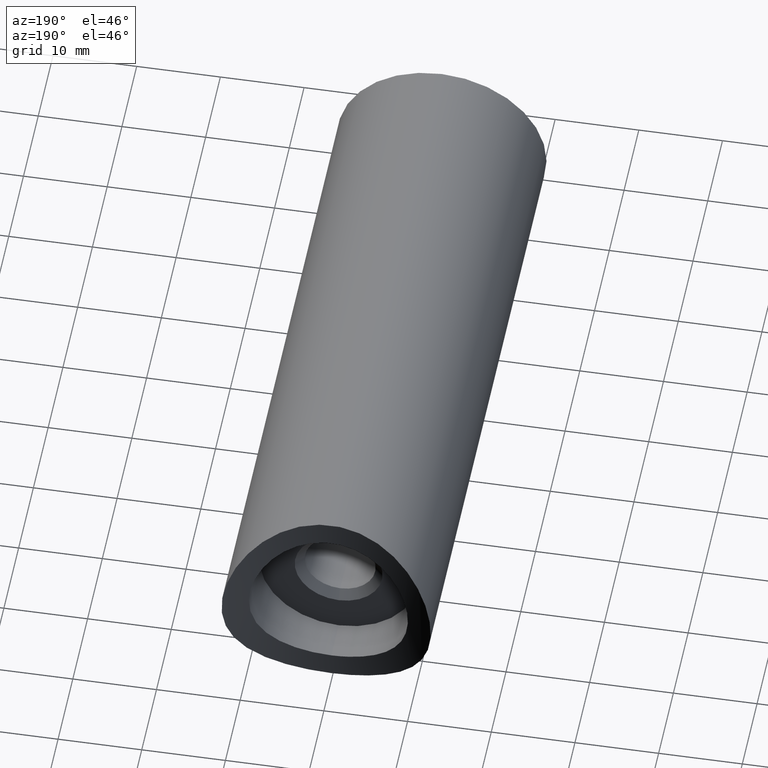
[diagram: clean part render]
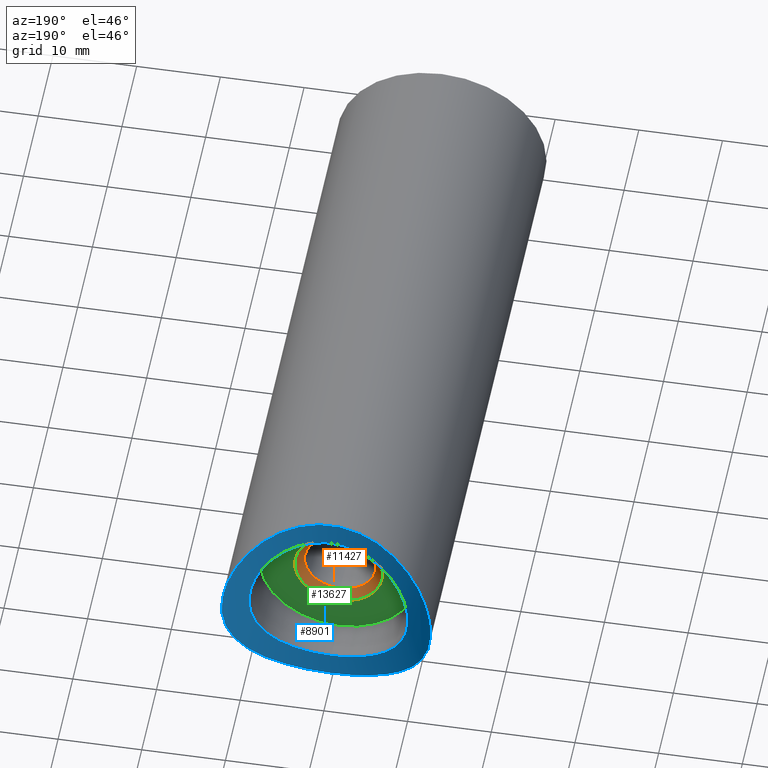
[diagram: same view with three faces highlighted in distinct colors, each labeled with its STEP entity id]
A machine part, auxiliary view with three faces highlighted in distinct colors.
Their STEP definitions:

[orange] entity #11427 — the highlighted conical surface has half-angle 45 deg.
#717 = DIRECTION ( 'NONE',  ( 0.000000000000000000, 0.000000000000000000, -1.000000000000000000 ) ) ;
#1230 = DIRECTION ( 'NONE',  ( 0.000000000000000000, 1.000000000000000000, 0.000000000000000000 ) ) ;
#2233 = AXIS2_PLACEMENT_3D ( 'NONE', #7409, #4196, #717 ) ;
#2691 = FACE_BOUND ( 'NONE', #4431, .T. ) ;
#2869 = CARTESIAN_POINT ( 'NONE',  ( 0.000000000000000000, 70.00000000000000000, 0.000000000000000000 ) ) ;
#2877 = ORIENTED_EDGE ( 'NONE', *, *, #13805, .F. ) ;
#3480 = CARTESIAN_POINT ( 'NONE',  ( 0.000000000000000000, 69.00000000000000000, 0.000000000000000000 ) ) ;
#4196 = DIRECTION ( 'NONE',  ( 0.000000000000000000, 1.000000000000000000, 0.000000000000000000 ) ) ;
#4431 = EDGE_LOOP ( 'NONE', ( #8418 ) ) ;
#4937 = VERTEX_POINT ( 'NONE', #10315 ) ;
#6818 = CARTESIAN_POINT ( 'NONE',  ( 0.000000000000000000, 69.00000000000000000, -4.249999999999988454 ) ) ;
#6826 = VERTEX_POINT ( 'NONE', #6818 ) ;
#7319 = AXIS2_PLACEMENT_3D ( 'NONE', #2869, #7341, #10904 ) ;
#7341 = DIRECTION ( 'NONE',  ( 0.000000000000000000, -1.000000000000000000, 0.000000000000000000 ) ) ;
#7409 = CARTESIAN_POINT ( 'NONE',  ( 0.000000000000000000, 69.00000000000000000, 0.000000000000000000 ) ) ;
#8392 = CONICAL_SURFACE ( 'NONE', #12679, 4.249999999999988454, 0.7853981633974457255 ) ;
#8418 = ORIENTED_EDGE ( 'NONE', *, *, #9882, .F. ) ;
#8756 = FACE_OUTER_BOUND ( 'NONE', #14425, .T. ) ;
#9515 = CIRCLE ( 'NONE', #2233, 4.249999999999988454 ) ;
#9882 = EDGE_CURVE ( 'NONE', #6826, #6826, #9515, .T. ) ;
#10315 = CARTESIAN_POINT ( 'NONE',  ( 0.000000000000000000, 70.00000000000000000, -5.249999999999984013 ) ) ;
#10904 = DIRECTION ( 'NONE',  ( 0.000000000000000000, 0.000000000000000000, -1.000000000000000000 ) ) ;
#11427 = ADVANCED_FACE ( 'NONE', ( #8756, #2691 ), #8392, .F. ) ;
#12637 = DIRECTION ( 'NONE',  ( 0.000000000000000000, 0.000000000000000000, 1.000000000000000000 ) ) ;
#12679 = AXIS2_PLACEMENT_3D ( 'NONE', #3480, #1230, #12637 ) ;
#13237 = CIRCLE ( 'NONE', #7319, 5.249999999999984013 ) ;
#13805 = EDGE_CURVE ( 'NONE', #4937, #4937, #13237, .T. ) ;
#14425 = EDGE_LOOP ( 'NONE', ( #2877 ) ) ;

[blue] entity #8901 — the highlighted cylindrical surface (partial cylindrical patch) has radius 24.15 mm, axis along (-0, -0, 1).
#36 = CARTESIAN_POINT ( 'NONE',  ( 9.193056664637765607, 76.81778522380197671, 2.475342058951142121 ) ) ;
#37 = CARTESIAN_POINT ( 'NONE',  ( -11.18556598586051010, 77.74549956250866956, 5.594425883101207475 ) ) ;
#81 = CARTESIAN_POINT ( 'NONE',  ( -8.510542519066493838, 76.54872143713436117, 4.232847530208183606 ) ) ;
#82 = CARTESIAN_POINT ( 'NONE',  ( 5.616393516081356729, 75.64972558784738510, 11.19673421751230258 ) ) ;
#130 = CARTESIAN_POINT ( 'NONE',  ( 9.499214769619728216, 76.94667998977251955, -0.6384542957926189199 ) ) ;
#131 = CARTESIAN_POINT ( 'NONE',  ( -10.61159664689884252, 77.45488404047154063, -6.618618285412095403 ) ) ;
#189 = CARTESIAN_POINT ( 'NONE',  ( -4.218238365120572375, 75.36961082937598633, 8.517827586905390547 ) ) ;
#190 = CARTESIAN_POINT ( 'NONE',  ( -6.316747293375139627, 75.83777653740196456, -10.79430669075418692 ) ) ;
#292 = CARTESIAN_POINT ( 'NONE',  ( -1.572090179147043632, 75.04927085023612676, -9.374213592972790110 ) ) ;
#950 = CARTESIAN_POINT ( 'NONE',  ( 12.06284593198464172, 78.22800179751477856, -3.302785208884871260 ) ) ;
#1045 = CARTESIAN_POINT ( 'NONE',  ( 1.666427008392844522, 75.04383638825332525, -12.41589289394555884 ) ) ;
#1093 = CARTESIAN_POINT ( 'NONE',  ( 9.125846458580165077, 76.78856738321623254, -8.551539796307121577 ) ) ;
#1136 = CARTESIAN_POINT ( 'NONE',  ( 9.437043816654821171, 76.91978093354752843, -1.258921852254846430 ) ) ;
#1137 = CARTESIAN_POINT ( 'NONE',  ( -3.316877259944496004, 75.21483071661621977, -12.08057711187188410 ) ) ;
#1182 = CARTESIAN_POINT ( 'NONE',  ( -8.216106106290522959, 76.44003022689670956, 4.779323449297377735 ) ) ;
#1183 = CARTESIAN_POINT ( 'NONE',  ( 9.412192866964703697, 76.90790369320748709, 8.235475087461979982 ) ) ;
#1237 = CARTESIAN_POINT ( 'NONE',  ( 3.077021658739412580, 75.19492368750546518, -8.993352366064405246 ) ) ;
#1238 = CARTESIAN_POINT ( 'NONE',  ( -12.47702995727797415, 78.47275003880018573, 0.8636410543319847921 ) ) ;
#1290 = CARTESIAN_POINT ( 'NONE',  ( 9.376693620057871215, 76.89456204277402662, 1.557247264431473432 ) ) ;
#1291 = CARTESIAN_POINT ( 'NONE',  ( 4.493358900822063795, 75.41862216006218489, 11.67154270457320919 ) ) ;
#1339 = CARTESIAN_POINT ( 'NONE',  ( 3.093813615829786645, 75.19203433111398738, 9.003380680992760787 ) ) ;
#1340 = CARTESIAN_POINT ( 'NONE',  ( -12.09488317661415913, 78.24612544468091357, -3.263940484297841227 ) ) ;
#1386 = CARTESIAN_POINT ( 'NONE',  ( -9.500662680517631742, 76.94729950751319336, -0.6160530832159377690 ) ) ;
#1495 = CARTESIAN_POINT ( 'NONE',  ( -0.6353278872126894017, 75.00631901483400554, -9.483969120928300356 ) ) ;
#2044 = CARTESIAN_POINT ( 'NONE',  ( 2.174000736269224632, 75.09609725218493281, -9.253158087516537122 ) ) ;
#2045 = CARTESIAN_POINT ( 'NONE',  ( 4.073928212782695901, 75.34271850014701499, -11.82477579534296197 ) ) ;
#2096 = CARTESIAN_POINT ( 'NONE',  ( 12.17629244726874482, 78.29408420261459867, 2.856247619983864894 ) ) ;
#2222 = CARTESIAN_POINT ( 'NONE',  ( 0.000000000000000000, 99.15000000000000568, -12.50000000000000000 ) ) ;
#2247 = CARTESIAN_POINT ( 'NONE',  ( 11.67831068887509716, 78.01066302200520397, -4.475638660923367596 ) ) ;
#2297 = CARTESIAN_POINT ( 'NONE',  ( 8.884871832431230132, 76.69342269747139085, -3.377035680665607220 ) ) ;
#2298 = CARTESIAN_POINT ( 'NONE',  ( -10.58722758480828574, 77.44295697200134043, 6.657615752389719255 ) ) ;
#2343 = CARTESIAN_POINT ( 'NONE',  ( 6.502903001252344772, 75.89090259929585613, -6.932254495519477366 ) ) ;
#2344 = CARTESIAN_POINT ( 'NONE',  ( -6.665751520387539486, 75.93550895653356747, -10.58210857748916567 ) ) ;
#2395 = CARTESIAN_POINT ( 'NONE',  ( 8.527852376057261097, 76.55434819827355852, -4.231666778120470873 ) ) ;
#2396 = CARTESIAN_POINT ( 'NONE',  ( -11.36069409278679920, 77.83828525848096547, 5.229597903835157879 ) ) ;
#2442 = CARTESIAN_POINT ( 'NONE',  ( -3.934444486296392540, 75.32087562434655581, 8.652572895259925900 ) ) ;
#2443 = CARTESIAN_POINT ( 'NONE',  ( -8.264077568507039118, 76.44978608018516297, 9.412695405477595756 ) ) ;
#2502 = CARTESIAN_POINT ( 'NONE',  ( 9.251696904950398093, 76.84230876325581505, -2.180429874088628761 ) ) ;
#2504 = CARTESIAN_POINT ( 'NONE',  ( -10.81973109692051693, 77.55827660612015961, -6.272818569617441220 ) ) ;
#2552 = CARTESIAN_POINT ( 'NONE',  ( -7.161008188894703252, 76.08167090256068832, -6.272936677098543967 ) ) ;
#2603 = CARTESIAN_POINT ( 'NONE',  ( -9.255283127220218731, 76.84379706405243837, -2.165420669590635061 ) ) ;
#2680 = VERTEX_POINT ( 'NONE', #11494 ) ;
#2795 = B_SPLINE_CURVE_WITH_KNOTS ( 'NONE', 3,
 ( #6741, #6794, #1045, #5550, #4565, #2045, #12455, #12357, #9101, #13565, #13666, #13514, #4521, #1093, #6640, #6691, #5684, #14727, #5637, #2247, #14677, #950, #11290, #3393, #13618, #4473, #7888, #3347, #11333, #2096, #6588, #7739, #10112, #10342, #9193, #7974, #11631, #1183, #12750, #8171, #9238, #8069, #82, #1291, #10491, #3485, #12645, #6933, #4801, #9293, #7031, #11472, #5823, #13853, #3541, #12798, #11579, #6982, #2443, #5774, #5731, #2298, #3597, #37, #2396, #13705, #4656, #10445, #13801, #1238, #10394, #10298, #6841, #6888, #5881, #1340, #4746, #13902, #14867, #2504, #131, #8023, #11522, #3440, #11425, #12698, #4704, #2344, #190, #3650, #8119, #9337, #1137, #9145, #4605, #12603, #13750, #11835 ),
 .UNSPECIFIED., .T., .F.,
 ( 4, 2, 2, 2, 2, 2, 2, 2, 2, 2, 2, 2, 2, 2, 2, 2, 2, 2, 2, 2, 2, 2, 2, 2, 2, 2, 2, 2, 2, 2, 2, 2, 2, 2, 2, 2, 2, 2, 2, 2, 2, 2, 2, 2, 2, 2, 2, 2, 4 ),
 ( 0.000000000000000000, 0.002486133216992819726, 0.003729199825489227637, 0.004972266433985636849, 0.007458399650978455274, 0.008701466259474866655, 0.009944532867971275433, 0.01118759947646768595, 0.01243066608496409819, 0.01491679930195691922, 0.01615986591045333320, 0.01740293251894974372, 0.01988906573594257168, 0.02113213234443898914, 0.02237519895293540312, 0.02361826556143181710, 0.02486133216992823108, 0.02734746538692106252, 0.02859053199541747650, 0.02983359860391389742, 0.03231973182090672192, 0.03480586503789954295, 0.03604893164639594999, 0.03729199825489235703, 0.03977813147188517112, 0.04102119808038158510, 0.04226426468887799215, 0.04475039790587081318, 0.04723653112286363420, 0.04972266433985644829, 0.05220879755684926932, 0.05345186416534567636, 0.05469493077384209034, 0.05718106399083490443, 0.05842413059933131148, 0.05966719720782772546, 0.06091026381632413250, 0.06215333042482054648, 0.06463946364181336057, 0.06588253025030976762, 0.06712559685880617466, 0.06836866346730258170, 0.06961173007579898875, 0.07209786329279180284, 0.07334092990128820988, 0.07458399650978461692, 0.07707012972677744489, 0.07831319633527385193, 0.07955626294377027286 ),
 .UNSPECIFIED. ) ;
#3347 = CARTESIAN_POINT ( 'NONE',  ( 12.39939560149940156, 78.42610661434582653, 1.636956017459156199 ) ) ;
#3393 = CARTESIAN_POINT ( 'NONE',  ( 12.41328738822395650, 78.43359788489519246, -1.685670540479240254 ) ) ;
#3439 = CARTESIAN_POINT ( 'NONE',  ( 5.044969069780093740, 75.53136713757005793, 8.055662908764864127 ) ) ;
#3440 = CARTESIAN_POINT ( 'NONE',  ( -9.411987761562489396, 76.90781012069029998, -8.235748521031609926 ) ) ;
#3484 = CARTESIAN_POINT ( 'NONE',  ( 8.236572966326859202, 76.44503504265567528, -4.774411568650105409 ) ) ;
#3485 = CARTESIAN_POINT ( 'NONE',  ( 3.322960808794975573, 75.22639354888728747, 12.05726743121238265 ) ) ;
#3540 = CARTESIAN_POINT ( 'NONE',  ( -9.005327352623405446, 76.74034258593999880, 3.088788311459570668 ) ) ;
#3541 = CARTESIAN_POINT ( 'NONE',  ( -4.048937038016216405, 75.32909628045071315, 11.85496764630668842 ) ) ;
#3596 = CARTESIAN_POINT ( 'NONE',  ( 1.260343601547155412, 75.03089121637468395, 9.421238629142054677 ) ) ;
#3597 = CARTESIAN_POINT ( 'NONE',  ( -10.79939258952037839, 77.54808700369301278, 6.307741837057436740 ) ) ;
#3649 = CARTESIAN_POINT ( 'NONE',  ( 6.938676291945663266, 76.01715648012773840, 6.496099429218702426 ) ) ;
#3650 = CARTESIAN_POINT ( 'NONE',  ( -5.595272729540679890, 75.65417096119982432, -11.18531521167289711 ) ) ;
#3759 = CARTESIAN_POINT ( 'NONE',  ( -6.508174638112111055, 75.89236685973550323, -6.927380896768315921 ) ) ;
#3908 = CARTESIAN_POINT ( 'NONE',  ( -5.800068759184891398, 75.70554385703265154, -7.530264462451012442 ) ) ;
#4473 = CARTESIAN_POINT ( 'NONE',  ( 12.50105946675680713, 78.48732800745126781, 0.3829992845280569269 ) ) ;
#4493 = CARTESIAN_POINT ( 'NONE',  ( 0.000000000000000000, 75.00000000000000000, -9.500000000000000000 ) ) ;
#4521 = CARTESIAN_POINT ( 'NONE',  ( 8.560607551957428285, 76.56613982061726631, -9.117340885081242519 ) ) ;
#4565 = CARTESIAN_POINT ( 'NONE',  ( 3.280682860040504689, 75.22050641012256733, -12.06894086756879325 ) ) ;
#4604 = CARTESIAN_POINT ( 'NONE',  ( -2.477368257026574927, 75.11946122093324618, 9.192778334958587649 ) ) ;
#4605 = CARTESIAN_POINT ( 'NONE',  ( -1.676951933329619893, 75.05466276626709998, -12.39411511674445698 ) ) ;
#4655 = CARTESIAN_POINT ( 'NONE',  ( -5.799092914521390085, 75.70073719207624663, 7.549815552955290165 ) ) ;
#4656 = CARTESIAN_POINT ( 'NONE',  ( -12.07716066025249901, 78.23582747360669032, 3.330140473100294596 ) ) ;
#4703 = CARTESIAN_POINT ( 'NONE',  ( 9.485152732290417887, 76.94064353638327702, 0.6178967879999681667 ) ) ;
#4704 = CARTESIAN_POINT ( 'NONE',  ( -7.670003217709709276, 76.23967696440641362, -9.903237437807746346 ) ) ;
#4745 = CARTESIAN_POINT ( 'NONE',  ( 2.500404097984892271, 75.12179392227974972, 9.186700151532587455 ) ) ;
#4746 = CARTESIAN_POINT ( 'NONE',  ( -11.85457163419845195, 78.10669073264533324, -4.048891219634837668 ) ) ;
#4800 = CARTESIAN_POINT ( 'NONE',  ( -0.3171744019907673517, 75.00000000000004263, -9.500000000000001776 ) ) ;
#4801 = CARTESIAN_POINT ( 'NONE',  ( 0.8701867918572706584, 75.00139095811007905, 12.49731265922302015 ) ) ;
#4861 = CARTESIAN_POINT ( 'NONE',  ( -8.996200247582851972, 76.73793805095576204, -3.068502061978064521 ) ) ;
#4910 = CARTESIAN_POINT ( 'NONE',  ( -5.553079317562379380, 75.64565565303477968, -7.714129740837600835 ) ) ;
#4954 = CARTESIAN_POINT ( 'NONE',  ( -1.262451520650291092, 75.03097868495191847, -9.421015230271068575 ) ) ;
#5446 = CARTESIAN_POINT ( 'NONE',  ( 1.256893714816299523, 75.02493451614628839, -9.437111494792404187 ) ) ;
#5550 = CARTESIAN_POINT ( 'NONE',  ( 2.880084786186518198, 75.16890301952329878, -12.17068015586779772 ) ) ;
#5637 = CARTESIAN_POINT ( 'NONE',  ( 11.20659804588976804, 77.75461045228877310, -5.596363829670499612 ) ) ;
#5658 = DIRECTION ( 'NONE',  ( 1.000000000000000000, 0.000000000000000000, 0.000000000000000000 ) ) ;
#5683 = CARTESIAN_POINT ( 'NONE',  ( 4.776994683298587674, 75.47553062007276026, 8.217483131435335153 ) ) ;
#5684 = CARTESIAN_POINT ( 'NONE',  ( 10.14872829841706015, 77.23452566915328532, -7.308644647692623231 ) ) ;
#5730 = CARTESIAN_POINT ( 'NONE',  ( 7.540132609630790128, 76.20634207888515732, 5.787255511451562029 ) ) ;
#5731 = CARTESIAN_POINT ( 'NONE',  ( -9.909193422454766420, 77.12091001598065532, 7.662299098335452641 ) ) ;
#5773 = CARTESIAN_POINT ( 'NONE',  ( -8.056722323660352458, 76.38281855678741294, 5.043165203084824633 ) ) ;
#5774 = CARTESIAN_POINT ( 'NONE',  ( -9.399704287991012208, 76.89600599078944754, 8.278850895681339139 ) ) ;
#5822 = CARTESIAN_POINT ( 'NONE',  ( -9.434962940845293744, 76.91889607188139166, 1.273160634128879698 ) ) ;
#5823 = CARTESIAN_POINT ( 'NONE',  ( -2.042669042519714928, 75.08308288046927714, 12.33891662597604011 ) ) ;
#5879 = CARTESIAN_POINT ( 'NONE',  ( 8.237217831319831873, 76.44533245457874671, 4.772522679604951357 ) ) ;
#5881 = CARTESIAN_POINT ( 'NONE',  ( -12.33897836552500316, 78.38991737696545670, -2.042544866178391594 ) ) ;
#5943 = VERTEX_POINT ( 'NONE', #4493 ) ;
#6134 = CARTESIAN_POINT ( 'NONE',  ( -6.776263578034402713E-16, 75.00000000000002842, -9.500000000000001776 ) ) ;
#6588 = CARTESIAN_POINT ( 'NONE',  ( 12.07568711241505000, 78.23542578517957224, 3.255345404598879888 ) ) ;
#6640 = CARTESIAN_POINT ( 'NONE',  ( 9.394847521644635435, 76.90057323516757037, -8.255202184159767143 ) ) ;
#6691 = CARTESIAN_POINT ( 'NONE',  ( 9.905737200678293775, 77.12327709735983206, -7.634650847773375659 ) ) ;
#6741 = CARTESIAN_POINT ( 'NONE',  ( -1.626303258728256651E-16, 75.00000000000001421, -12.50000000000000355 ) ) ;
#6794 = CARTESIAN_POINT ( 'NONE',  ( 0.8416139926660887172, 74.99999999999998579, -12.50000000000000000 ) ) ;
#6840 = CARTESIAN_POINT ( 'NONE',  ( -9.499326505657204933, 76.94672779820564301, 0.6363243742295972005 ) ) ;
#6841 = CARTESIAN_POINT ( 'NONE',  ( -12.48178325670625632, 78.47562429088374358, -0.7935034702485436187 ) ) ;
#6887 = CARTESIAN_POINT ( 'NONE',  ( 6.275586754272982404, 75.82833350539628725, -7.138791081410559514 ) ) ;
#6888 = CARTESIAN_POINT ( 'NONE',  ( -12.40093975770249735, 78.42703164710890462, -1.625193573246784373 ) ) ;
#6932 = CARTESIAN_POINT ( 'NONE',  ( -6.275471604676970294, 75.82512488083456503, 7.159155207153961697 ) ) ;
#6933 = CARTESIAN_POINT ( 'NONE',  ( 1.693364542386435190, 75.04548548441425737, 12.41272702035197639 ) ) ;
#6981 = CARTESIAN_POINT ( 'NONE',  ( 5.798810078399073475, 75.70523685616372234, -7.531210320333029173 ) ) ;
#6982 = CARTESIAN_POINT ( 'NONE',  ( -7.632636067880916642, 76.22716114424368072, 9.932055065716140163 ) ) ;
#7016 = EDGE_LOOP ( 'NONE', ( #7278 ) ) ;
#7030 = CARTESIAN_POINT ( 'NONE',  ( 9.423099453564327987, 76.91424425455466007, 1.247042695232497334 ) ) ;
#7031 = CARTESIAN_POINT ( 'NONE',  ( -0.7937935283653622109, 75.00941349151192128, 12.48185230467801787 ) ) ;
#7079 = CARTESIAN_POINT ( 'NONE',  ( -8.891121034785888000, 76.69589652520495804, -3.360649652997342418 ) ) ;
#7132 = CARTESIAN_POINT ( 'NONE',  ( -7.550169701924356325, 76.20768821133580673, -5.798833281063219935 ) ) ;
#7278 = ORIENTED_EDGE ( 'NONE', *, *, #8276, .T. ) ;
#7739 = CARTESIAN_POINT ( 'NONE',  ( 11.83531592272857758, 78.09846963203420955, 4.042869024516787313 ) ) ;
#7887 = CARTESIAN_POINT ( 'NONE',  ( -6.776263578034402713E-16, 75.00000000000002842, -9.500000000000001776 ) ) ;
#7888 = CARTESIAN_POINT ( 'NONE',  ( 12.48103956478300702, 78.47517425164691929, 0.8051631312347361513 ) ) ;
#7928 = CARTESIAN_POINT ( 'NONE',  ( 0.6343488039815238233, 75.00000000000000000, -9.499999999999998224 ) ) ;
#7973 = CARTESIAN_POINT ( 'NONE',  ( 9.500381635804100000, 76.94717925683632131, 0.3015378183090448583 ) ) ;
#7974 = CARTESIAN_POINT ( 'NONE',  ( 10.16551749499001467, 77.24231694392014447, 7.285275361540624495 ) ) ;
#8022 = CARTESIAN_POINT ( 'NONE',  ( 4.777492450567414117, 75.47141337804067973, -8.234587001808485240 ) ) ;
#8023 = CARTESIAN_POINT ( 'NONE',  ( -10.16369364889730420, 77.24147719938140710, -7.287758421890151439 ) ) ;
#8068 = CARTESIAN_POINT ( 'NONE',  ( -8.645799211394619377, 76.60029495687116707, 3.949277084034159113 ) ) ;
#8069 = CARTESIAN_POINT ( 'NONE',  ( 6.328959426137787503, 75.83337971956817114, 10.81014121441068099 ) ) ;
#8118 = CARTESIAN_POINT ( 'NONE',  ( -0.6128182607090354450, 75.00574505691896832, 9.485427861461763754 ) ) ;
#8119 = CARTESIAN_POINT ( 'NONE',  ( -5.226925829154954073, 75.56930795605691742, -11.36202694756624787 ) ) ;
#8170 = CARTESIAN_POINT ( 'NONE',  ( -7.542979384534634235, 76.20534345693084788, 5.807806941451851834 ) ) ;
#8171 = CARTESIAN_POINT ( 'NONE',  ( 8.296859981971218545, 76.46183937423685961, 9.383618653070689319 ) ) ;
#8267 = CARTESIAN_POINT ( 'NONE',  ( -9.178132630791344226, 76.81182592256007524, -2.471680644941140148 ) ) ;
#8276 = EDGE_CURVE ( 'NONE', #5943, #5943, #14009, .T. ) ;
#8319 = CARTESIAN_POINT ( 'NONE',  ( -3.378324793188790309, 75.23567709680904159, -8.884536148079378748 ) ) ;
#8424 = CARTESIAN_POINT ( 'NONE',  ( -9.440023145085600476, 76.92104852317645225, -1.238229698173417104 ) ) ;
#8578 = EDGE_LOOP ( 'NONE', ( #9519 ) ) ;
#8803 = CYLINDRICAL_SURFACE ( 'NONE', #12287, 24.15000000000000568 ) ;
#8901 = ADVANCED_FACE ( 'NONE', ( #11847, #9534 ), #8803, .F. ) ;
#9101 = CARTESIAN_POINT ( 'NONE',  ( 6.306957372526911243, 75.82748068079618520, -10.82273894371697587 ) ) ;
#9144 = CARTESIAN_POINT ( 'NONE',  ( 5.548325332916294705, 75.64451264848283074, -7.717629189169092463 ) ) ;
#9145 = CARTESIAN_POINT ( 'NONE',  ( -2.094311208364741717, 75.08749313957576987, -12.33032299215526351 ) ) ;
#9192 = CARTESIAN_POINT ( 'NONE',  ( -4.766860932096791181, 75.47348250131881287, 8.223378779994929388 ) ) ;
#9193 = CARTESIAN_POINT ( 'NONE',  ( 10.83888041841365357, 77.56323408702181155, 6.278582914400733905 ) ) ;
#9237 = CARTESIAN_POINT ( 'NONE',  ( 7.544457634476889218, 76.20576920126886478, -5.806659888272249326 ) ) ;
#9238 = CARTESIAN_POINT ( 'NONE',  ( 7.679687139352859404, 76.24273228511961520, 9.896326891067065645 ) ) ;
#9291 = CARTESIAN_POINT ( 'NONE',  ( 9.011774073292219356, 76.74291890696503060, 3.071009793062422499 ) ) ;
#9293 = CARTESIAN_POINT ( 'NONE',  ( -0.3758445865019311993, 74.99935297399902367, 12.50125005891698038 ) ) ;
#9336 = CARTESIAN_POINT ( 'NONE',  ( 9.173829633520961480, 76.81005503092798392, -2.487681751522926810 ) ) ;
#9337 = CARTESIAN_POINT ( 'NONE',  ( -4.099037510848098975, 75.33803756378462424, -11.83695617156265811 ) ) ;
#9494 = CARTESIAN_POINT ( 'NONE',  ( -4.244949404084845668, 75.36881882954118339, -8.521892304879832736 ) ) ;
#9519 = ORIENTED_EDGE ( 'NONE', *, *, #13989, .F. ) ;
#9534 = FACE_OUTER_BOUND ( 'NONE', #8578, .T. ) ;
#10112 = CARTESIAN_POINT ( 'NONE',  ( 11.69463221032094857, 78.01968349082271459, 4.433206286189488310 ) ) ;
#10297 = CARTESIAN_POINT ( 'NONE',  ( 5.813957471726465265, 75.70439223781714588, 7.538538968242256999 ) ) ;
#10298 = CARTESIAN_POINT ( 'NONE',  ( -12.50113647660907645, 78.48737459274475725, -0.3784457863119028986 ) ) ;
#10341 = CARTESIAN_POINT ( 'NONE',  ( 7.147168841551586382, 76.08090777420343898, 6.266091578966769937 ) ) ;
#10342 = CARTESIAN_POINT ( 'NONE',  ( 11.22171516179564321, 77.76251763114063920, 5.567231885764321042 ) ) ;
#10393 = CARTESIAN_POINT ( 'NONE',  ( -1.238753796529346918, 75.02975783685548095, 9.424137995978076887 ) ) ;
#10394 = CARTESIAN_POINT ( 'NONE',  ( -12.49876076068150077, 78.48593744263713745, 0.4501265013655172953 ) ) ;
#10418 = DIRECTION ( 'NONE',  ( -0.000000000000000000, -0.000000000000000000, 1.000000000000000000 ) ) ;
#10444 = CARTESIAN_POINT ( 'NONE',  ( 8.529957691302318068, 76.55510728411171328, 4.228829020159070140 ) ) ;
#10445 = CARTESIAN_POINT ( 'NONE',  ( -12.32893162694468892, 78.38393572538483056, 2.102821018098294914 ) ) ;
#10490 = CARTESIAN_POINT ( 'NONE',  ( 6.286814923218995155, 75.82826828645842454, 7.148713453203204615 ) ) ;
#10491 = CARTESIAN_POINT ( 'NONE',  ( 4.109752741455188207, 75.34892971800194061, 11.81226899662650709 ) ) ;
#10597 = CARTESIAN_POINT ( 'NONE',  ( -2.183789432479960269, 75.09698196075517274, -9.250860053672594674 ) ) ;
#10750 = CARTESIAN_POINT ( 'NONE',  ( -8.653247290357750643, 76.60315748394174307, -3.932850197670828329 ) ) ;
#11290 = CARTESIAN_POINT ( 'NONE',  ( 12.16623829432022674, 78.28821014725350835, -2.898783021241126967 ) ) ;
#11333 = CARTESIAN_POINT ( 'NONE',  ( 12.33814508041328928, 78.38942444237837037, 2.047052564725855728 ) ) ;
#11424 = CARTESIAN_POINT ( 'NONE',  ( 0.6367274069740974651, 75.00637850114738114, 9.483817578424565298 ) ) ;
#11425 = CARTESIAN_POINT ( 'NONE',  ( -9.139284782924375961, 76.79403560448592714, -8.537292556855808456 ) ) ;
#11471 = CARTESIAN_POINT ( 'NONE',  ( 1.573465314519190139, 75.04932036444496646, 9.374090728484144819 ) ) ;
#11472 = CARTESIAN_POINT ( 'NONE',  ( -1.630651670391566999, 75.05147306847734967, 12.40031129654895814 ) ) ;
#11494 = CARTESIAN_POINT ( 'NONE',  ( 0.000000000000000000, 75.00000000000000000, -12.50000000000000000 ) ) ;
#11521 = CARTESIAN_POINT ( 'NONE',  ( -9.187328606542141785, 76.81541917489053617, 2.496488888585727928 ) ) ;
#11522 = CARTESIAN_POINT ( 'NONE',  ( -9.923924471011337900, 77.13145673881372488, -7.611096531981363711 ) ) ;
#11578 = CARTESIAN_POINT ( 'NONE',  ( 8.990454928467288553, 76.73562935201549351, -3.085357486730781140 ) ) ;
#11579 = CARTESIAN_POINT ( 'NONE',  ( -6.290458467577765944, 75.82310979107228377, 10.83203505537225908 ) ) ;
#11630 = CARTESIAN_POINT ( 'NONE',  ( 3.373369171928280341, 75.23500148463070047, -8.886341893753193943 ) ) ;
#11631 = CARTESIAN_POINT ( 'NONE',  ( 9.923142205795823401, 77.13111103054637852, 7.612074174934297943 ) ) ;
#11734 = CARTESIAN_POINT ( 'NONE',  ( -2.485849473620656891, 75.12640256134531569, -9.174306299042532586 ) ) ;
#11834 = CARTESIAN_POINT ( 'NONE',  ( -6.277639297956278952, 75.82888153849503965, -7.137010952105947048 ) ) ;
#11835 = CARTESIAN_POINT ( 'NONE',  ( -1.626303258728256651E-16, 75.00000000000001421, -12.50000000000000355 ) ) ;
#11847 = FACE_BOUND ( 'NONE', #7016, .T. ) ;
#12287 = AXIS2_PLACEMENT_3D ( 'NONE', #2222, #10418, #5658 ) ;
#12357 = CARTESIAN_POINT ( 'NONE',  ( 5.594287980704869767, 75.64427812082081459, -11.20816533570559592 ) ) ;
#12455 = CARTESIAN_POINT ( 'NONE',  ( 4.463086516404182191, 75.41286688508515113, -11.68324080886738159 ) ) ;
#12552 = CARTESIAN_POINT ( 'NONE',  ( 4.229353381389529432, 75.37159070499657787, 8.512301521622470446 ) ) ;
#12602 = CARTESIAN_POINT ( 'NONE',  ( 0.01253060823600819947, 74.99394442722088172, 9.515361503100100649 ) ) ;
#12603 = CARTESIAN_POINT ( 'NONE',  ( -0.8415633137906065597, 75.01104361446216728, -12.47870299761530610 ) ) ;
#12644 = CARTESIAN_POINT ( 'NONE',  ( -1.553460638403702188, 75.04803593235152448, 9.377387258404230153 ) ) ;
#12645 = CARTESIAN_POINT ( 'NONE',  ( 2.916893301379968939, 75.17329496480513740, 12.16203323285879456 ) ) ;
#12697 = CARTESIAN_POINT ( 'NONE',  ( 2.476898393227372708, 75.12545592991585863, -9.176787205671455894 ) ) ;
#12698 = CARTESIAN_POINT ( 'NONE',  ( -8.287351939170411796, 76.45826186860352891, -9.392409702269306493 ) ) ;
#12749 = CARTESIAN_POINT ( 'NONE',  ( 7.723775209362810479, 76.26772316830307830, 5.539673194081188967 ) ) ;
#12750 = CARTESIAN_POINT ( 'NONE',  ( 9.143358402556374998, 76.79572744065201562, 8.532821530365831464 ) ) ;
#12797 = CARTESIAN_POINT ( 'NONE',  ( -4.787628771710838116, 75.47354158460973395, -8.228399662555501592 ) ) ;
#12798 = CARTESIAN_POINT ( 'NONE',  ( -5.575696691962567009, 75.63955654282345620, 11.21809945721803814 ) ) ;
#12848 = CARTESIAN_POINT ( 'NONE',  ( -3.082449562587944225, 75.19564369067417431, -8.991431942035323033 ) ) ;
#12950 = CARTESIAN_POINT ( 'NONE',  ( -8.226763975962539277, 76.44389147346070956, -4.760989118344682858 ) ) ;
#12999 = CARTESIAN_POINT ( 'NONE',  ( -8.520452612577111395, 76.55245815996788394, -4.212902820861089026 ) ) ;
#13514 = CARTESIAN_POINT ( 'NONE',  ( 8.264370655871715599, 76.45571132997646657, -9.386802674788906842 ) ) ;
#13565 = CARTESIAN_POINT ( 'NONE',  ( 7.317373504727923361, 76.13256476786168037, -10.14252889460935769 ) ) ;
#13618 = CARTESIAN_POINT ( 'NONE',  ( 12.49774924526884590, 78.48532554201318590, -0.8654298213824812569 ) ) ;
#13666 = CARTESIAN_POINT ( 'NONE',  ( 7.643601615584860731, 76.23917472201797807, -9.898850495652819603 ) ) ;
#13704 = CARTESIAN_POINT ( 'NONE',  ( 3.949770568916404656, 75.32343629741849611, 8.645516123807395203 ) ) ;
#13705 = CARTESIAN_POINT ( 'NONE',  ( -11.83278988928865516, 78.09445903304801107, 4.109907718995614800 ) ) ;
#13749 = CARTESIAN_POINT ( 'NONE',  ( -7.153422303367714896, 76.07924161334415203, 6.282005769728961297 ) ) ;
#13750 = CARTESIAN_POINT ( 'NONE',  ( -0.4208069963330476337, 75.00000000000002842, -12.50000000000000533 ) ) ;
#13800 = CARTESIAN_POINT ( 'NONE',  ( -3.072267678048729245, 75.18916197169116344, 9.011029675267776540 ) ) ;
#13801 = CARTESIAN_POINT ( 'NONE',  ( -12.39229586063314592, 78.42185618982530571, 1.689128689021142105 ) ) ;
#13852 = CARTESIAN_POINT ( 'NONE',  ( -5.031704170482030669, 75.52854408895726124, 8.063916636441513575 ) ) ;
#13853 = CARTESIAN_POINT ( 'NONE',  ( -3.260479979501057723, 75.20719823985105279, 12.09564845651103404 ) ) ;
#13901 = CARTESIAN_POINT ( 'NONE',  ( 4.234205104439967116, 75.36699973984651990, -8.526914707248506531 ) ) ;
#13902 = CARTESIAN_POINT ( 'NONE',  ( -11.38086847299331694, 77.84904600285716469, -5.185983993912956613 ) ) ;
#13989 = EDGE_CURVE ( 'NONE', #2680, #2680, #2795, .T. ) ;
#14009 = B_SPLINE_CURVE_WITH_KNOTS ( 'NONE', 3,
 ( #7887, #7928, #5446, #2044, #12697, #1237, #11630, #13901, #8022, #9144, #6981, #6887, #2343, #14866, #9237, #3484, #2395, #2297, #11578, #9336, #2502, #1136, #130, #7973, #4703, #7030, #1290, #36, #9291, #10444, #5879, #12749, #5730, #10341, #3649, #10490, #10297, #3439, #5683, #12552, #13704, #1339, #4745, #11471, #3596, #11424, #12602, #8118, #10393, #12644, #4604, #13800, #2442, #189, #9192, #13852, #4655, #6932, #13749, #8170, #5773, #1182, #81, #8068, #3540, #11521, #5822, #6840, #1386, #8424, #2603, #8267, #4861, #7079, #10750, #12999, #12950, #14012, #7132, #2552, #3759, #11834, #3908, #4910, #12797, #9494, #8319, #12848, #11734, #10597, #292, #4954, #1495, #4800, #6134 ),
 .UNSPECIFIED., .T., .F.,
 ( 4, 2, 2, 2, 2, 2, 2, 2, 2, 2, 2, 2, 2, 2, 2, 2, 2, 2, 2, 2, 2, 2, 2, 1, 2, 2, 2, 2, 2, 2, 2, 2, 2, 2, 2, 2, 2, 2, 2, 2, 2, 2, 2, 2, 2, 2, 2, 4 ),
 ( 0.000000000000000000, 0.001874720630790725501, 0.002812080946186088903, 0.003749441261581452738, 0.005624161892372179540, 0.006561522207767546411, 0.007498882523162912414, 0.009373603153953653094, 0.01124832378474439204, 0.01218568410013976672, 0.01312304441553513966, 0.01499776504632588034, 0.01593512536172125502, 0.01687248567711662622, 0.01874720630790737211, 0.02062192693869811452, 0.02155928725409348920, 0.02249664756948886041, 0.02437136820027962017, 0.02530872851567499485, 0.02624608883107037299, 0.02812080946186111541, 0.02905816977725648315, 0.02999553009265185435, 0.03093289040804722556, 0.03187025072344259330, 0.03374497135423333571, 0.03468233166962871039, 0.03561969198502407813, 0.03749441261581482054, 0.03936913324660556990, 0.04030649356200094457, 0.04124385387739630537, 0.04311857450818705473, 0.04499329513897779714, 0.04686801576976854650, 0.04780537608516392117, 0.04874273640055929585, 0.04968009671595466359, 0.05061745703135003133, 0.05249217766214076680, 0.05342953797753614148, 0.05436689829293150228, 0.05624161892372225163, 0.05717897923911762631, 0.05811633955451298711, 0.05905369986990836179, 0.05999106018530373646 ),
 .UNSPECIFIED. ) ;
#14012 = CARTESIAN_POINT ( 'NONE',  ( -8.065665250542707554, 76.38598009467085603, -5.028958794178328695 ) ) ;
#14677 = CARTESIAN_POINT ( 'NONE',  ( 11.81847010116291408, 78.08899277737383215, -4.091992984200404138 ) ) ;
#14727 = CARTESIAN_POINT ( 'NONE',  ( 10.82438516625331992, 77.55592695536653025, -6.303536818163582467 ) ) ;
#14866 = CARTESIAN_POINT ( 'NONE',  ( 7.152746981666465054, 76.07914938774872837, -6.282022759720639726 ) ) ;
#14867 = CARTESIAN_POINT ( 'NONE',  ( -11.20397708090773392, 77.75514085818787180, -5.557493264728317506 ) ) ;

[green] entity #13627 — the highlighted planar face has unit normal (0, -1, 0).
#685 = CIRCLE ( 'NONE', #8659, 9.500000000000000000 ) ;
#1669 = ORIENTED_EDGE ( 'NONE', *, *, #14870, .F. ) ;
#2219 = DIRECTION ( 'NONE',  ( 0.000000000000000000, -1.000000000000000000, 0.000000000000000000 ) ) ;
#2632 = EDGE_LOOP ( 'NONE', ( #3553 ) ) ;
#2869 = CARTESIAN_POINT ( 'NONE',  ( 0.000000000000000000, 70.00000000000000000, 0.000000000000000000 ) ) ;
#3191 = FACE_BOUND ( 'NONE', #2632, .T. ) ;
#3374 = FACE_OUTER_BOUND ( 'NONE', #12224, .T. ) ;
#3553 = ORIENTED_EDGE ( 'NONE', *, *, #13805, .T. ) ;
#4583 = PLANE ( 'NONE',  #9529 ) ;
#4937 = VERTEX_POINT ( 'NONE', #10315 ) ;
#7319 = AXIS2_PLACEMENT_3D ( 'NONE', #2869, #7341, #10904 ) ;
#7341 = DIRECTION ( 'NONE',  ( 0.000000000000000000, -1.000000000000000000, 0.000000000000000000 ) ) ;
#8659 = AXIS2_PLACEMENT_3D ( 'NONE', #10270, #10364, #9071 ) ;
#8679 = VERTEX_POINT ( 'NONE', #9165 ) ;
#9071 = DIRECTION ( 'NONE',  ( 0.000000000000000000, 0.000000000000000000, -1.000000000000000000 ) ) ;
#9165 = CARTESIAN_POINT ( 'NONE',  ( 0.000000000000000000, 70.00000000000000000, -9.500000000000000000 ) ) ;
#9529 = AXIS2_PLACEMENT_3D ( 'NONE', #12717, #2219, #10268 ) ;
#10268 = DIRECTION ( 'NONE',  ( 0.000000000000000000, -0.000000000000000000, -1.000000000000000000 ) ) ;
#10270 = CARTESIAN_POINT ( 'NONE',  ( 0.000000000000000000, 70.00000000000000000, 0.000000000000000000 ) ) ;
#10315 = CARTESIAN_POINT ( 'NONE',  ( 0.000000000000000000, 70.00000000000000000, -5.249999999999984013 ) ) ;
#10364 = DIRECTION ( 'NONE',  ( 0.000000000000000000, -1.000000000000000000, 0.000000000000000000 ) ) ;
#10904 = DIRECTION ( 'NONE',  ( 0.000000000000000000, 0.000000000000000000, -1.000000000000000000 ) ) ;
#12224 = EDGE_LOOP ( 'NONE', ( #1669 ) ) ;
#12717 = CARTESIAN_POINT ( 'NONE',  ( 0.000000000000000000, 70.00000000000000000, 0.000000000000000000 ) ) ;
#13237 = CIRCLE ( 'NONE', #7319, 5.249999999999984013 ) ;
#13627 = ADVANCED_FACE ( 'NONE', ( #3191, #3374 ), #4583, .F. ) ;
#13805 = EDGE_CURVE ( 'NONE', #4937, #4937, #13237, .T. ) ;
#14870 = EDGE_CURVE ( 'NONE', #8679, #8679, #685, .T. ) ;